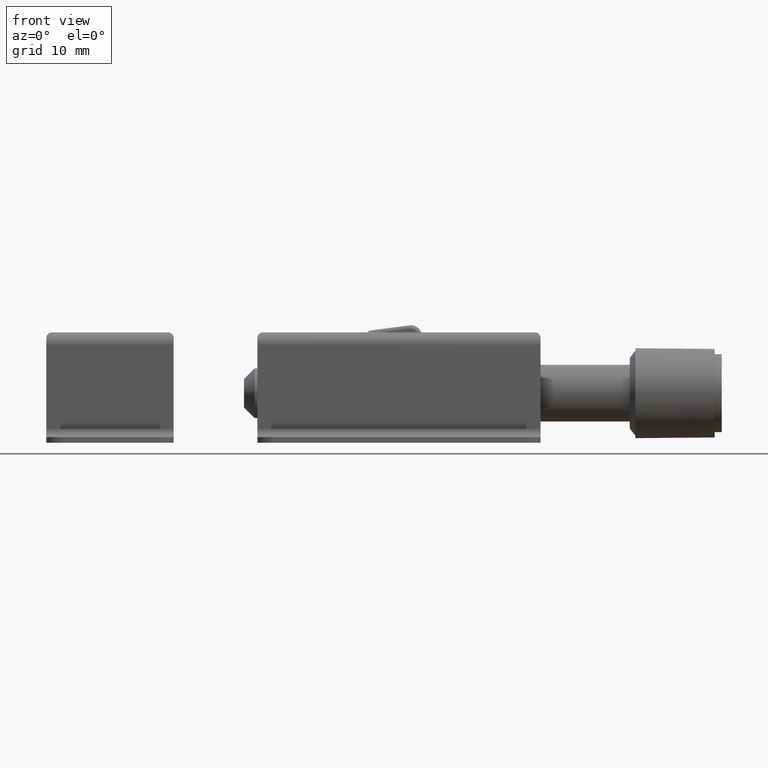
[diagram: clean part render]
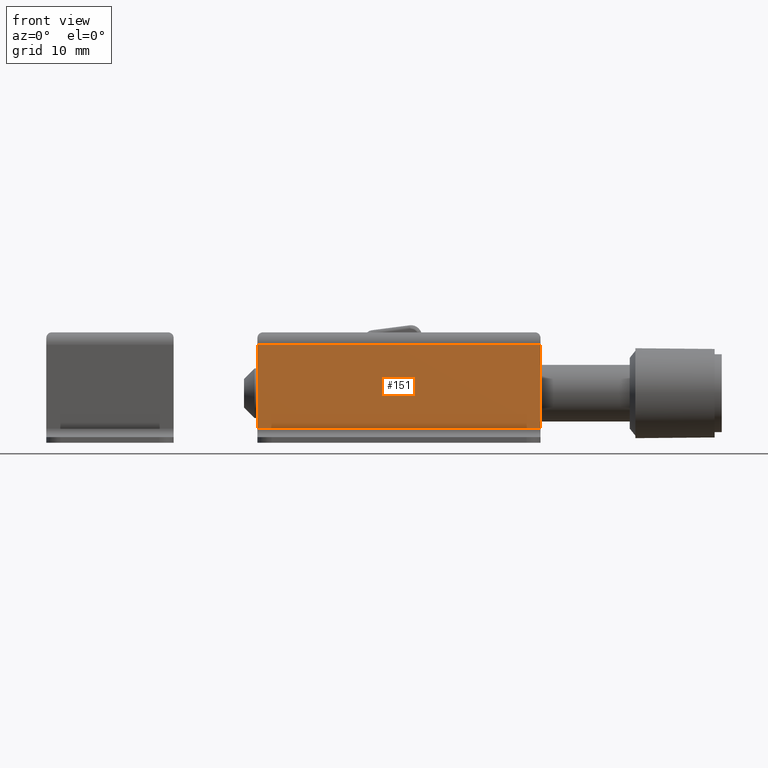
[diagram: same view with one face highlighted and labeled with its STEP entity id]
A machine part, front view. The second image highlights one B-rep face of the part: STEP entity #151.
In plain terms, the highlighted planar face has unit normal (0, 1, 0).
Its self-contained STEP definition (entity closure, byte-faithful):
#151=ADVANCED_FACE('',(#300),#299,.F.);
#299=PLANE('',#1621);
#300=FACE_OUTER_BOUND('',#1622,.T.);
#1618=CARTESIAN_POINT('',(-1.15000000000E+01,4.40000000000E+00,1.50000000008E-02));
#1619=DIRECTION('',(0.00000000000E+00,1.00000000000E+00,0.00000000000E+00));
#1620=DIRECTION('',(0.00000000000E+00,-0.00000000000E+00,1.00000000000E+00));
#1621=AXIS2_PLACEMENT_3D('',#1618,#1619,#1620);
#1622=EDGE_LOOP('',(#2377,#2378,#2379,#2380));
#2377=ORIENTED_EDGE('',*,*,#3042,.T.);
#2378=ORIENTED_EDGE('',*,*,#3040,.F.);
#2379=ORIENTED_EDGE('',*,*,#3043,.F.);
#2380=ORIENTED_EDGE('',*,*,#3044,.T.);
#3040=EDGE_CURVE('',#3408,#3415,#3416,.T.);
#3042=EDGE_CURVE('',#3428,#3415,#3429,.T.);
#3043=EDGE_CURVE('',#3435,#3408,#3436,.T.);
#3044=EDGE_CURVE('',#3435,#3428,#3442,.T.);
#3408=VERTEX_POINT('',#5627);
#3415=VERTEX_POINT('',#5632);
#3416=LINE('',#5633,#5634);
#3428=VERTEX_POINT('',#5640);
#3429=LINE('',#5641,#5642);
#3435=VERTEX_POINT('',#5644);
#3436=LINE('',#5645,#5646);
#3442=LINE('',#5648,#5649);
#5627=CARTESIAN_POINT('',(-7.50000000000E+00,4.40000000000E+00,1.30500000000E+01));
#5632=CARTESIAN_POINT('',(3.25000000000E+01,4.40000000000E+00,1.30500000000E+01));
#5633=CARTESIAN_POINT('',(-7.50000000000E+00,4.40000000000E+00,1.30500000000E+01));
#5634=VECTOR('',#5635,4.00000000000E+01);
#5635=DIRECTION('',(1.00000000000E+00,0.00000000000E+00,0.00000000000E+00));
#5640=CARTESIAN_POINT('',(3.25000000000E+01,4.40000000000E+00,1.20000000000E+00));
#5641=CARTESIAN_POINT('',(3.25000000000E+01,4.40000000000E+00,1.20000000000E+00));
#5642=VECTOR('',#5643,1.18500000000E+01);
#5643=DIRECTION('',(0.00000000000E+00,0.00000000000E+00,1.00000000000E+00));
#5644=CARTESIAN_POINT('',(-7.50000000000E+00,4.40000000000E+00,1.20000000000E+00));
#5645=CARTESIAN_POINT('',(-7.50000000000E+00,4.40000000000E+00,1.20000000000E+00));
#5646=VECTOR('',#5647,1.18500000000E+01);
#5647=DIRECTION('',(0.00000000000E+00,0.00000000000E+00,1.00000000000E+00));
#5648=CARTESIAN_POINT('',(-7.50000000000E+00,4.40000000000E+00,1.20000000000E+00));
#5649=VECTOR('',#5650,4.00000000000E+01);
#5650=DIRECTION('',(1.00000000000E+00,0.00000000000E+00,0.00000000000E+00));